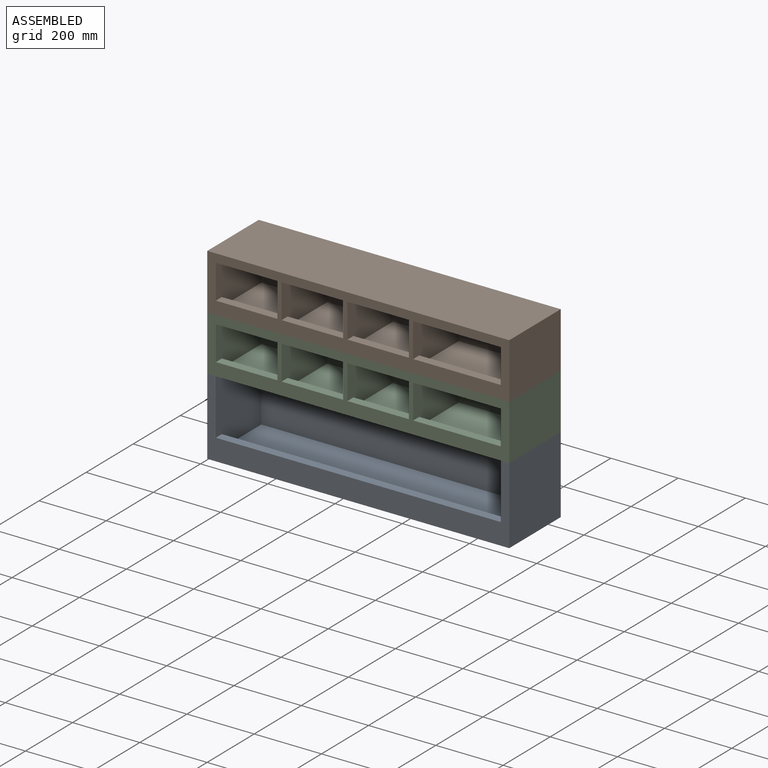
[diagram: assembled view]
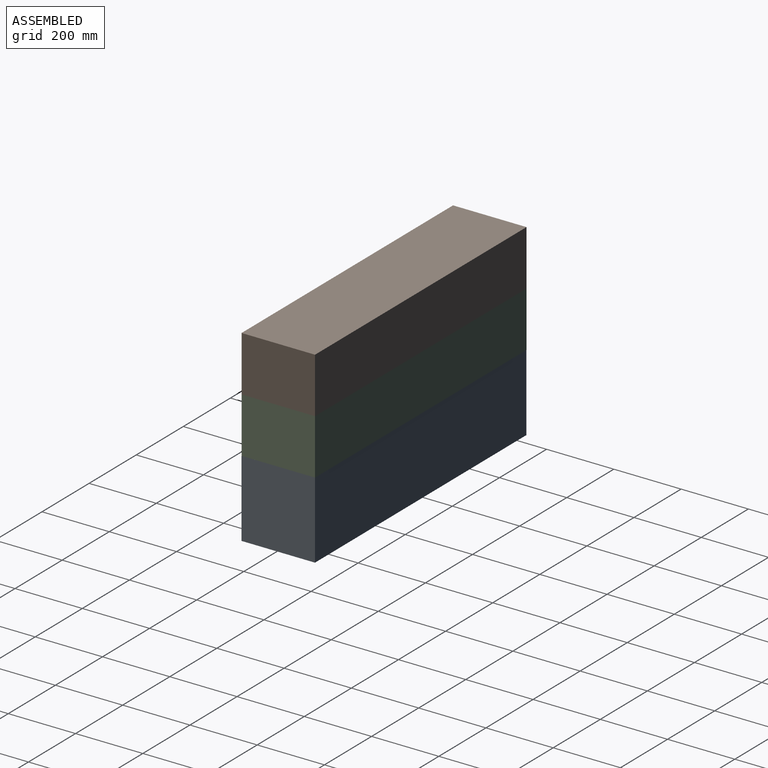
[diagram: assembled view, second angle]
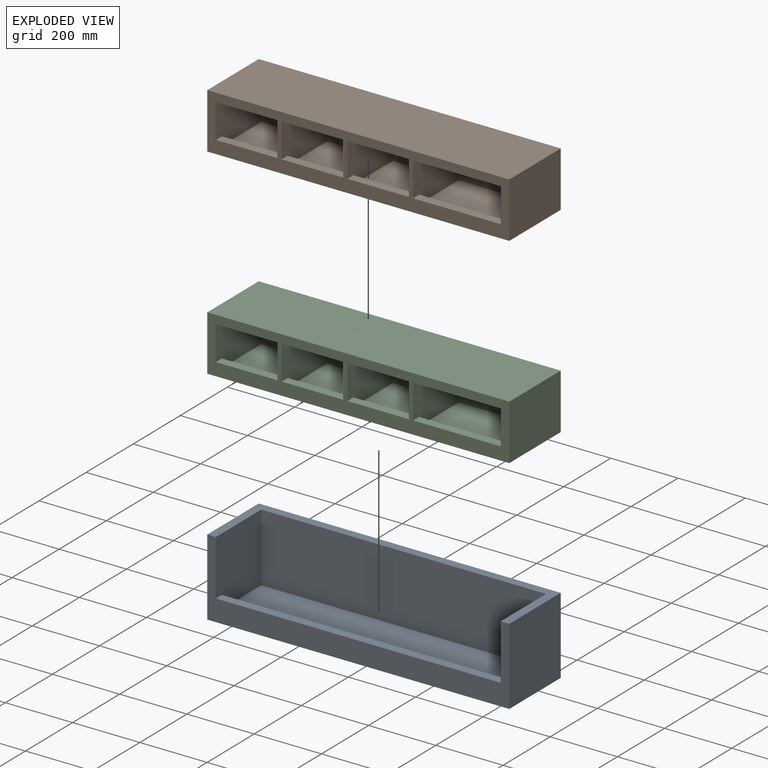
[diagram: exploded view]
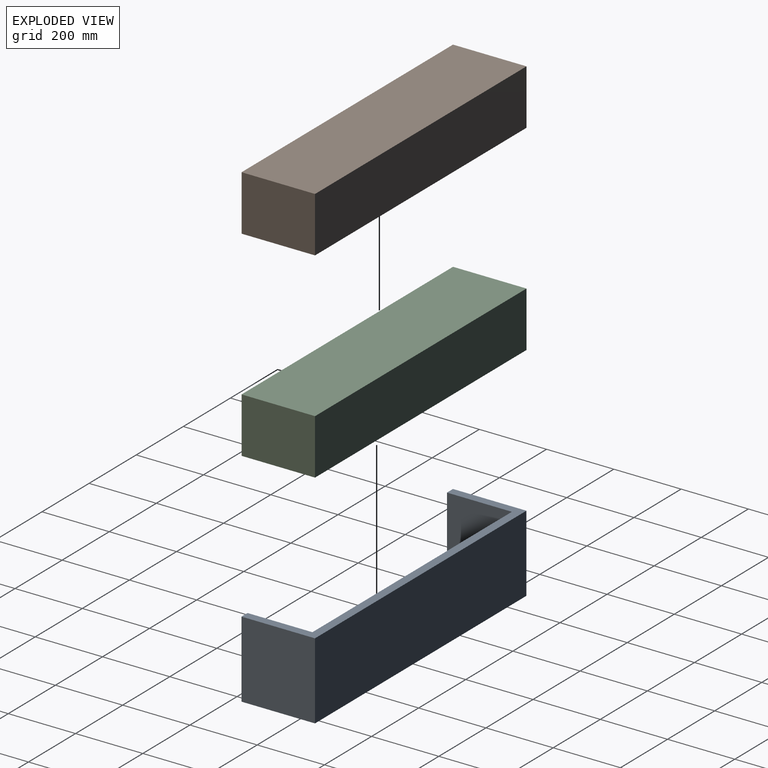
[diagram: exploded view, second angle]
ASSEMBLY  parts=3 mates=2
PART A: 12 faces, bbox 897.9x218.4x228.6 mm
  f0: plane 847.09x167.64mm, normal (0,0,1), area 142006.2mm2, adj f6,f7,f8,f10
  f1: plane 897.89x228.6mm, normal (0,1,0), area 205257.7mm2, adj f2,f4,f5,f9
  f2: plane 228.6x218.44mm, normal (-1,0,0), area 49935.4mm2, adj f1,f3,f5,f9
  f3: plane 897.89x228.6mm, normal (0,-1,0), area 65403.1mm2, adj f2,f4,f5,f6,f8,f9,f11
  f4: plane 228.6x218.44mm, normal (1,0,0), area 49935.4mm2, adj f1,f3,f5,f9
  f5: plane 897.89x218.44mm, normal (0,0,-1), area 196135.1mm2, adj f1,f2,f3,f4
  f6: plane 203.2x193.04mm, normal (1,0,0), area 38258mm2, adj f0,f3,f7,f9,f10,f11
  f7: plane 847.09x203.2mm, normal (0,-1,0), area 172128.7mm2, adj f0,f6,f8,f9
  f8: plane 203.2x193.04mm, normal (-1,0,0), area 38258mm2, adj f0,f3,f7,f9,f10,f11
  f9: plane 897.89x218.44mm, normal (0,0,1), area 32612.8mm2, adj f1,f2,f3,f4,f6,f7,f8
  f10: plane 847.09x38.1mm, normal (0,1,0), area 32274.1mm2, adj f0,f6,f8,f11
  f11: plane 847.09x25.4mm, normal (0,0,1), area 21516.1mm2, adj f3,f6,f8,f10
PART B: 34 faces, bbox 897.9x218.4x165.1 mm
  f0: plane 260.35x167.64mm, normal (0,0,1), area 43645.1mm2, adj f18,f19,f20,f22
  f1: plane 182.88x167.64mm, normal (0,0,1), area 30658mm2, adj f12,f13,f14,f26
  f2: plane 182.88x167.64mm, normal (0,0,1), area 30658mm2, adj f9,f10,f11,f27
  f3: plane 182.88x167.64mm, normal (0,0,1), area 30658mm2, adj f15,f16,f17,f24
  f4: plane 897.89x165.1mm, normal (0,1,0), area 148241.6mm2, adj f5,f7,f8,f32
  f5: plane 218.44x165.1mm, normal (-1,0,0), area 36064.4mm2, adj f4,f6,f8,f32
  f6: plane 897.89x165.1mm, normal (0,-1,0), area 66048.3mm2, adj f5,f7,f8,f9,f11,f12,f14,f15
  f7: plane 218.44x165.1mm, normal (1,0,0), area 36064.4mm2, adj f4,f6,f8,f32
  f8: plane 897.89x218.44mm, normal (0,0,-1), area 196135.1mm2, adj f4,f5,f6,f7
  f9: plane 193.04x127mm, normal (1,0,0), area 23870.9mm2, adj f2,f6,f10,f27,f28,f29
  f10: plane 182.88x127mm, normal (0,-1,0), area 23225.8mm2, adj f2,f9,f11,f29
  f11: plane 193.04x127mm, normal (-1,0,0), area 23870.9mm2, adj f2,f6,f10,f27,f28,f29
  f12: plane 193.04x127mm, normal (1,0,0), area 23870.9mm2, adj f1,f6,f13,f25,f26,f30
  f13: plane 182.88x127mm, normal (0,-1,0), area 23225.8mm2, adj f1,f12,f14,f30
  f14: plane 193.04x127mm, normal (-1,0,0), area 23870.9mm2, adj f1,f6,f13,f25,f26,f30
  f15: plane 193.04x127mm, normal (1,0,0), area 23870.9mm2, adj f3,f6,f16,f23,f24,f33
  f16: plane 182.88x127mm, normal (0,-1,0), area 23225.8mm2, adj f3,f15,f17,f33
  f17: plane 193.04x127mm, normal (-1,0,0), area 23870.9mm2, adj f3,f6,f16,f23,f24,f33
  f18: plane 193.04x127mm, normal (1,0,0), area 23870.9mm2, adj f0,f6,f19,f21,f22,f31
  f19: plane 260.35x127mm, normal (0,-1,0), area 33064.4mm2, adj f0,f18,f20,f31
  f20: plane 193.04x127mm, normal (-1,0,0), area 23870.9mm2, adj f0,f6,f19,f21,f22,f31
  f21: plane 260.35x25.4mm, normal (0,0,1), area 6612.9mm2, adj f6,f18,f20,f22
  f22: plane 260.35x25.4mm, normal (0,1,0), area 6612.9mm2, adj f0,f18,f20,f21
  f23: plane 182.88x25.4mm, normal (0,0,1), area 4645.2mm2, adj f6,f15,f17,f24
  f24: plane 182.88x25.4mm, normal (0,1,0), area 4645.2mm2, adj f3,f15,f17,f23
  f25: plane 182.88x25.4mm, normal (0,0,1), area 4645.2mm2, adj f6,f12,f14,f26
  f26: plane 182.88x25.4mm, normal (0,1,0), area 4645.2mm2, adj f1,f12,f14,f25
  f27: plane 182.88x25.4mm, normal (0,1,0), area 4645.2mm2, adj f2,f9,f11,f28
  f28: plane 182.88x25.4mm, normal (0,0,1), area 4645.2mm2, adj f6,f9,f11,f27
  f29: plane 193.04x182.88mm, normal (0,0,-1), area 35303.2mm2, adj f6,f9,f10,f11
  f30: plane 193.04x182.88mm, normal (0,0,-1), area 35303.2mm2, adj f6,f12,f13,f14
  f31: plane 260.35x193.04mm, normal (0,0,-1), area 50258mm2, adj f6,f18,f19,f20
  f32: plane 897.89x218.44mm, normal (0,0,1), area 196135.1mm2, adj f4,f5,f6,f7
  f33: plane 193.04x182.88mm, normal (0,0,-1), area 35303.2mm2, adj f6,f15,f16,f17
PART C: same geometry as B
PLACE A t=(-2.7,-44.93,-614.16)mm
PLACE B t=(-2.7,-44.75,-220.46)mm
PLACE C t=(-2.7,-44.75,-385.56)mm
MATE fastened C.f32 <-> B.f8  axis (0,0,1) through (-2.7,-44.75,-220.46)mm
MATE fastened A.f9 <-> C.f8  axis (0,0,1) through (-2.7,18.75,-385.56)mm
